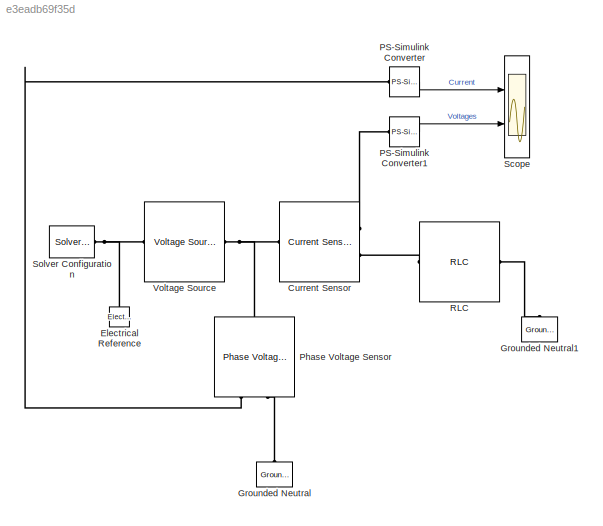
MODEL slx_e3eadb69f35d
KIND model
CONFIG AbsTol = auto
CONFIG EnableMultiTasking = off
CONFIG FixedStep = auto
CONFIG MaxStep = auto
CONFIG MinStep = auto
CONFIG RelTol = 1e-3
CONFIG SampleTimeConstraint = Unconstrained
CONFIG Solver = VariableStepAuto
CONFIG SolverName = VariableStepAuto
CONFIG StartTime = 0.0
CONFIG StopTime = 0.1
BLOCK [Reference] Current Sensor  REF=pe_lib/Sensors/Current Sensor
  Ports = [0, 0, 0, 0, 0, 1, 2]
  SourceBlock = pe_lib/Sensors/Current Sensor
  SourceProductBaseCode = PS
  SourceProductName = Simscape Power Systems
  SourceType = Current Sensor
BLOCK [Reference] Electrical Reference  REF=fl_lib/Electrical/Electrical Elements/Electrical Reference
  Ports = [0, 0, 0, 0, 0, 1]
  SourceBlock = fl_lib/Electrical/Electrical Elements/Electrical Reference
  SourceProductBaseCode = SS
  SourceProductName = Simscape
  SourceType = Electrical Reference
BLOCK [Reference] Grounded Neutral  REF=pe_lib/Connections/Grounded Neutral
  Ports = [0, 0, 0, 0, 0, 1]
  SourceBlock = pe_lib/Connections/Grounded Neutral
  SourceProductBaseCode = PS
  SourceProductName = Simscape Power Systems
  SourceType = Grounded Neutral
BLOCK [Reference] Grounded Neutral1  REF=pe_lib/Connections/Grounded Neutral
  Ports = [0, 0, 0, 0, 0, 1]
  SourceBlock = pe_lib/Connections/Grounded Neutral
  SourceProductBaseCode = PS
  SourceProductName = Simscape Power Systems
  SourceType = Grounded Neutral
BLOCK [Reference] PS-Simulink Converter  REF=nesl_utility/PS-Simulink
Converter
  Ports = [0, 1, 0, 0, 0, 1]
  SourceBlock = nesl_utility/PS-Simulink\nConverter
  SourceProductBaseCode = SS
  SourceProductName = Simscape
  SourceType = PS-Simulink\nConverter
BLOCK [Reference] PS-Simulink Converter1  REF=nesl_utility/PS-Simulink
Converter
  Ports = [0, 1, 0, 0, 0, 1]
  SourceBlock = nesl_utility/PS-Simulink\nConverter
  SourceProductBaseCode = SS
  SourceProductName = Simscape
  SourceType = PS-Simulink\nConverter
BLOCK [Reference] Phase Voltage Sensor  REF=pe_lib/Sensors/Phase Voltage Sensor
  Ports = [0, 0, 0, 0, 0, 1, 2]
  SourceBlock = pe_lib/Sensors/Phase Voltage Sensor
  SourceProductBaseCode = PS
  SourceProductName = Simscape Power Systems
  SourceType = Phase Voltage Sensor
BLOCK [Reference] RLC  REF=pe_lib/Passive Devices/RLC
  Ports = [0, 0, 0, 0, 0, 1, 1]
  SourceBlock = pe_lib/Passive Devices/RLC
  SourceProductBaseCode = PS
  SourceProductName = Simscape Power Systems
  SourceType = RLC
BLOCK [Scope] Scope
  NumInputPorts = 2
  Ports = [2]
  ScopeSpecificationString = Simulink.scopes.TimeScopeBlockCfg('CurrentConfiguration', extmgr.ConfigurationSet(extmgr.Configuration('Core','General UI',true),extmgr.Configuration('Core','Source UI',true),extmgr.Configuration('Sources','WiredSimulink',true),extmgr.Configuration('Visuals','Time Domain',true,'SerializedDisplays',{struct('MinYLimReal','-124.82608','MaxYLimReal','124.82608','YLabelReal','','MinYLimMag',' 0.00000',...<+1432ch>
BLOCK [Reference] Solver Configuration  REF=nesl_utility/Solver
Configuration
  Ports = [0, 0, 0, 0, 0, 0, 1]
  SourceBlock = nesl_utility/Solver\nConfiguration
  SourceProductBaseCode = SS
  SourceProductName = Simscape
  SourceType = Solver\nConfiguration
BLOCK [Reference] Voltage Source  REF=pe_lib/Sources/Voltage Source
  Ports = [0, 0, 0, 0, 0, 1, 1]
  SourceBlock = pe_lib/Sources/Voltage Source
  SourceProductBaseCode = PS
  SourceProductName = Simscape Power Systems
  SourceType = Voltage Source
LINE PS-Simulink Converter1:1 -> Scope:2
LINE PS-Simulink Converter:1 -> Scope:1
PNET net1: Current Sensor:LConn1 -- Phase Voltage Sensor:LConn1 -- Voltage Source:RConn1
PLINE Current Sensor:RConn1 -- PS-Simulink Converter1:LConn1
PLINE Current Sensor:RConn2 -- RLC:LConn1
PNET net2: Electrical Reference:LConn1 -- Solver Configuration:RConn1 -- Voltage Source:LConn1
PLINE Grounded Neutral1:LConn1 -- RLC:RConn1
PLINE Grounded Neutral:LConn1 -- Phase Voltage Sensor:RConn2
PLINE PS-Simulink Converter:LConn1 -- Phase Voltage Sensor:RConn1
note: PNET lines group multi-terminal physical nets as a canonical sorted terminal list (undirected conserving connections); 2-terminal nets keep the pairwise PLINE form
